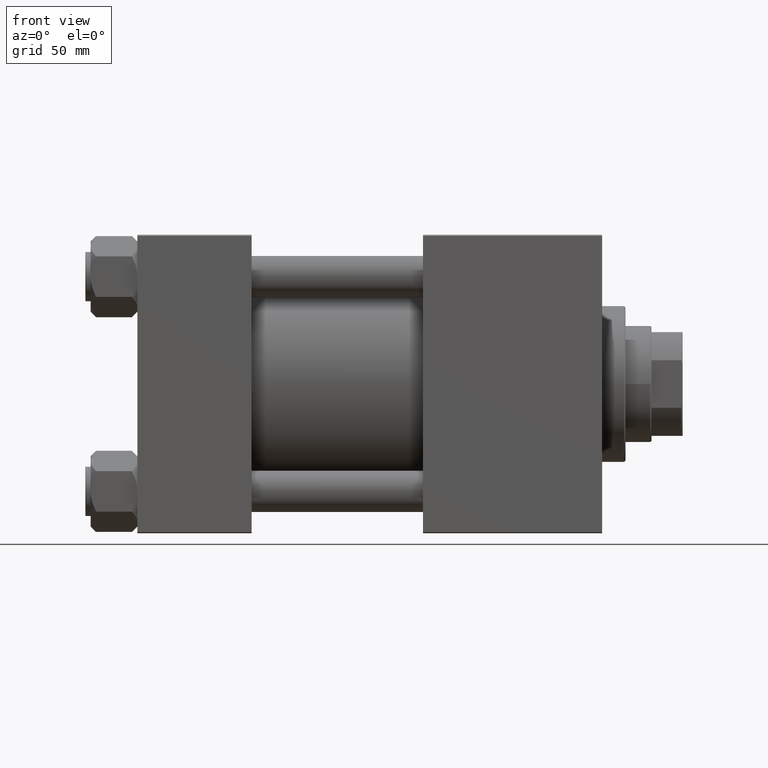
[diagram: clean part render]
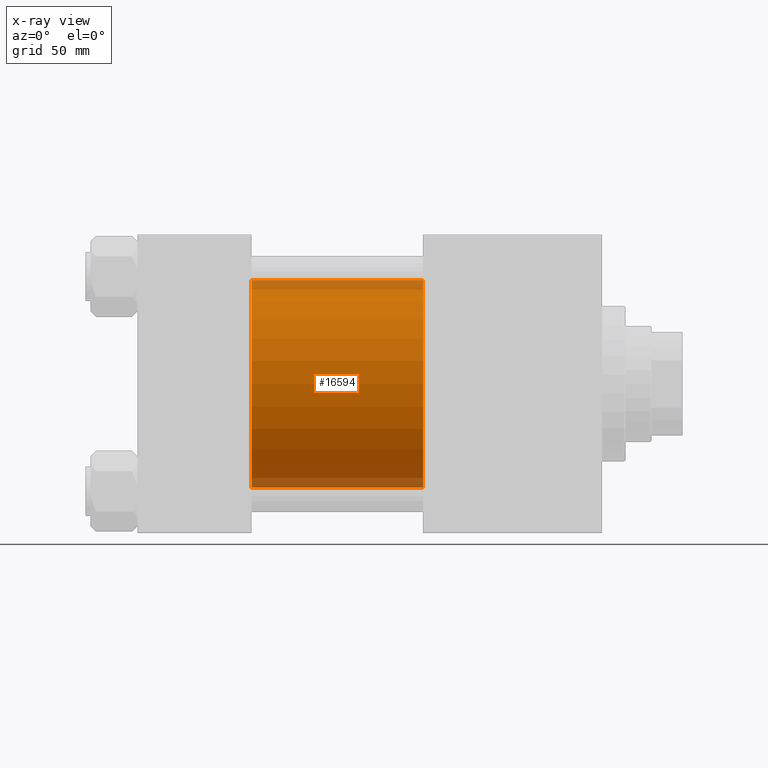
[diagram: x-ray — body ghosted, one internal face saturated and labeled with its STEP entity id]
A machine part, front view, then the same camera in x-ray: the body is ghosted and one INTERNAL B-rep face — a face not visible from any outside direction — is saturated and labeled: STEP entity #16594.
In plain terms, the highlighted cylindrical surface (partial cylindrical patch) has radius 40 mm, axis along (-1, -0, -0).
Its self-contained STEP definition (entity closure, byte-faithful):
#986 = LINE ( 'NONE', #47863, #1509 ) ;
#1509 = VECTOR ( 'NONE', #43760, 1000.000000000000000 ) ;
#2632 = EDGE_CURVE ( 'NONE', #34331, #50577, #40758, .T. ) ;
#4953 = ORIENTED_EDGE ( 'NONE', *, *, #13632, .T. ) ;
#5096 = DIRECTION ( 'NONE',  ( 1.000000000000000000, 0.000000000000000000, 0.000000000000000000 ) ) ;
#7077 = CARTESIAN_POINT ( 'NONE',  ( 110.0000000000000000, -2.602085213965210642E-15, 0.000000000000000000 ) ) ;
#8083 = CARTESIAN_POINT ( 'NONE',  ( 44.00000000000000000, 2.296501982624201990E-15, -40.00000000000000000 ) ) ;
#9680 = AXIS2_PLACEMENT_3D ( 'NONE', #32247, #5096, #43278 ) ;
#12670 = ORIENTED_EDGE ( 'NONE', *, *, #18533, .T. ) ;
#13632 = EDGE_CURVE ( 'NONE', #34217, #45858, #43894, .T. ) ;
#15019 = DIRECTION ( 'NONE',  ( 0.000000000000000000, 0.000000000000000000, 1.000000000000000000 ) ) ;
#15162 = CARTESIAN_POINT ( 'NONE',  ( 110.0000000000000000, -2.602085213965210642E-15, 0.000000000000000000 ) ) ;
#15266 = FACE_OUTER_BOUND ( 'NONE', #24974, .T. ) ;
#16594 = ADVANCED_FACE ( 'NONE', ( #15266 ), #30898, .F. ) ;
#18533 = EDGE_CURVE ( 'NONE', #45858, #50577, #986, .T. ) ;
#22696 = DIRECTION ( 'NONE',  ( -1.000000000000000000, -0.000000000000000000, -0.000000000000000000 ) ) ;
#23601 = DIRECTION ( 'NONE',  ( 1.000000000000000000, 0.000000000000000000, 0.000000000000000000 ) ) ;
#23615 = EDGE_CURVE ( 'NONE', #34217, #34331, #48975, .T. ) ;
#24585 = ORIENTED_EDGE ( 'NONE', *, *, #2632, .F. ) ;
#24729 = CARTESIAN_POINT ( 'NONE',  ( 44.00000000000000000, -2.602085213965210642E-15, 40.00000000000000000 ) ) ;
#24974 = EDGE_LOOP ( 'NONE', ( #4953, #12670, #24585, #27242 ) ) ;
#25126 = AXIS2_PLACEMENT_3D ( 'NONE', #7077, #22696, #15019 ) ;
#27242 = ORIENTED_EDGE ( 'NONE', *, *, #23615, .F. ) ;
#30898 = CYLINDRICAL_SURFACE ( 'NONE', #25126, 40.00000000000000000 ) ;
#32247 = CARTESIAN_POINT ( 'NONE',  ( 44.00000000000000000, -2.602085213965210642E-15, 0.000000000000000000 ) ) ;
#34217 = VERTEX_POINT ( 'NONE', #46772 ) ;
#34331 = VERTEX_POINT ( 'NONE', #24729 ) ;
#36883 = CARTESIAN_POINT ( 'NONE',  ( 110.0000000000000000, 2.296501982624201990E-15, -40.00000000000000000 ) ) ;
#37426 = CARTESIAN_POINT ( 'NONE',  ( 110.0000000000000000, -2.602085213965210642E-15, 40.00000000000000000 ) ) ;
#38136 = AXIS2_PLACEMENT_3D ( 'NONE', #15162, #23601, #50257 ) ;
#40758 = CIRCLE ( 'NONE', #9680, 40.00000000000000000 ) ;
#43278 = DIRECTION ( 'NONE',  ( 0.000000000000000000, 0.000000000000000000, -1.000000000000000000 ) ) ;
#43760 = DIRECTION ( 'NONE',  ( -1.000000000000000000, -0.000000000000000000, -0.000000000000000000 ) ) ;
#43894 = CIRCLE ( 'NONE', #38136, 40.00000000000000000 ) ;
#44866 = DIRECTION ( 'NONE',  ( -1.000000000000000000, -0.000000000000000000, -0.000000000000000000 ) ) ;
#45702 = VECTOR ( 'NONE', #44866, 1000.000000000000000 ) ;
#45858 = VERTEX_POINT ( 'NONE', #36883 ) ;
#46772 = CARTESIAN_POINT ( 'NONE',  ( 110.0000000000000000, -2.602085213965210642E-15, 40.00000000000000000 ) ) ;
#47863 = CARTESIAN_POINT ( 'NONE',  ( 110.0000000000000000, 2.296501982624201990E-15, -40.00000000000000000 ) ) ;
#48975 = LINE ( 'NONE', #37426, #45702 ) ;
#50257 = DIRECTION ( 'NONE',  ( 0.000000000000000000, 0.000000000000000000, -1.000000000000000000 ) ) ;
#50577 = VERTEX_POINT ( 'NONE', #8083 ) ;